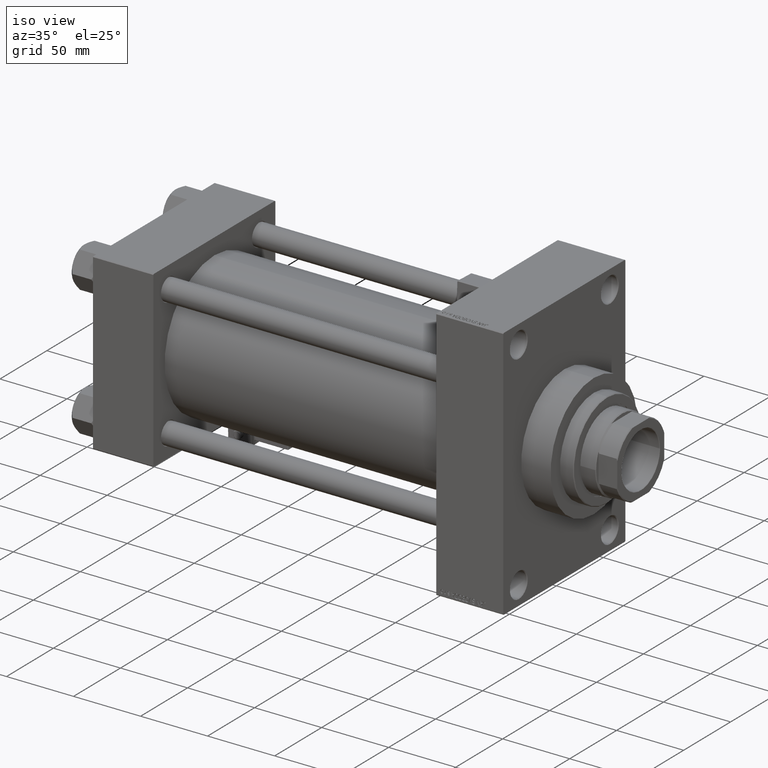
[diagram: clean part render]
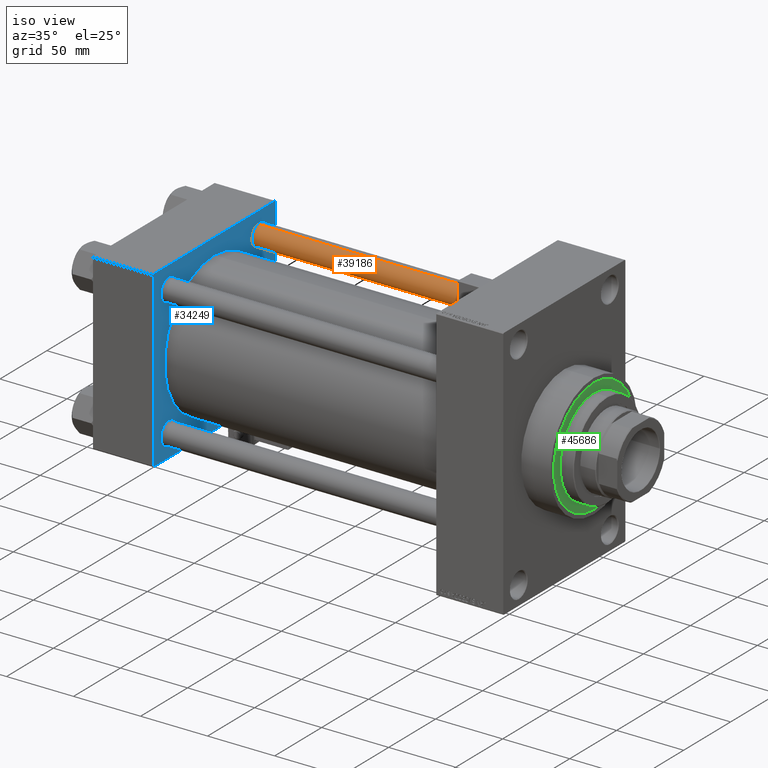
[diagram: same view with three faces highlighted in distinct colors, each labeled with its STEP entity id]
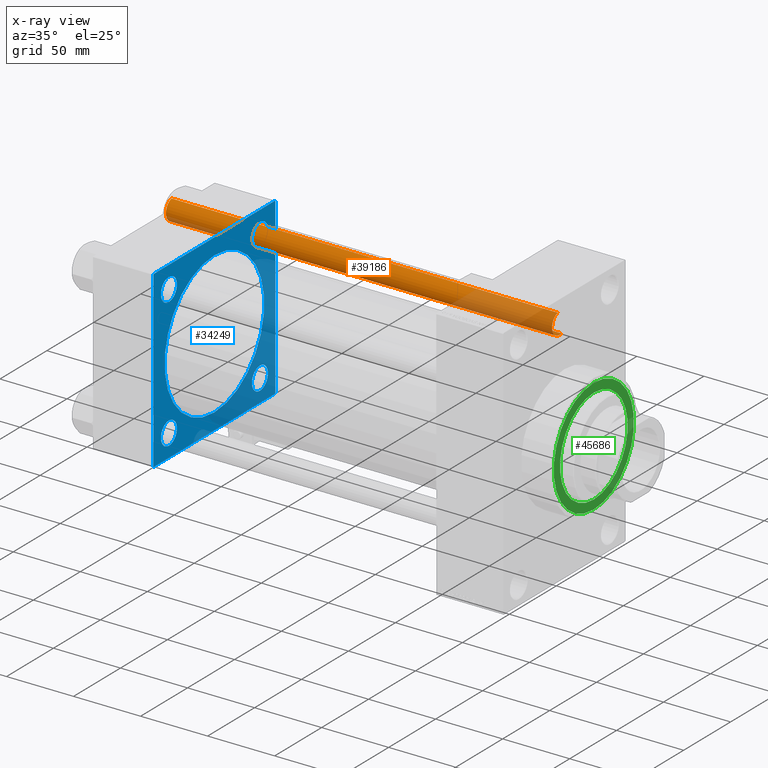
[diagram: x-ray of the same camera — body ghosted, the three highlighted faces saturated]
A machine part, iso view with three faces highlighted in distinct colors.
The next image is the same camera in x-ray (body ghosted, the three faces saturated) — at least one of them is partly hidden behind the body in this view.
Their STEP definitions:

[orange] entity #39186 — the highlighted cylindrical surface (edge-blend (fillet) strip) has radius 8 mm, axis along (-1, -0, 0).
#3914 = VERTEX_POINT ( 'NONE', #21766 ) ;
#5282 = AXIS2_PLACEMENT_3D ( 'NONE', #44425, #29289, #25001 ) ;
#5297 = CARTESIAN_POINT ( 'NONE',  ( -8.000000000000000000, 0.000000000000000000, 289.0000000000000000 ) ) ;
#6486 = VERTEX_POINT ( 'NONE', #22145 ) ;
#8903 = ORIENTED_EDGE ( 'NONE', *, *, #36702, .F. ) ;
#9100 = DIRECTION ( 'NONE',  ( -0.000000000000000000, -0.000000000000000000, -1.000000000000000000 ) ) ;
#9718 = ORIENTED_EDGE ( 'NONE', *, *, #20295, .T. ) ;
#9896 = DIRECTION ( 'NONE',  ( 1.000000000000000000, 0.000000000000000000, 0.000000000000000000 ) ) ;
#11014 = VECTOR ( 'NONE', #47243, 1000.000000000000000 ) ;
#12655 = LINE ( 'NONE', #42728, #11014 ) ;
#13025 = ORIENTED_EDGE ( 'NONE', *, *, #34467, .T. ) ;
#16992 = VECTOR ( 'NONE', #9100, 1000.000000000000000 ) ;
#17879 = AXIS2_PLACEMENT_3D ( 'NONE', #36919, #48277, #9896 ) ;
#20295 = EDGE_CURVE ( 'NONE', #6486, #37263, #46749, .T. ) ;
#21766 = CARTESIAN_POINT ( 'NONE',  ( 8.000000000000000000, 9.797174393178825657E-16, 288.5000000000000000 ) ) ;
#22145 = CARTESIAN_POINT ( 'NONE',  ( -8.000000000000000000, 0.000000000000000000, 288.5000000000000000 ) ) ;
#22680 = EDGE_CURVE ( 'NONE', #37263, #30196, #24367, .T. ) ;
#24367 = CIRCLE ( 'NONE', #17879, 8.000000000000000000 ) ;
#25001 = DIRECTION ( 'NONE',  ( 1.000000000000000000, 0.000000000000000000, 0.000000000000000000 ) ) ;
#27086 = AXIS2_PLACEMENT_3D ( 'NONE', #38635, #46941, #27269 ) ;
#27269 = DIRECTION ( 'NONE',  ( -1.000000000000000000, 0.000000000000000000, 0.000000000000000000 ) ) ;
#29289 = DIRECTION ( 'NONE',  ( 0.000000000000000000, 0.000000000000000000, -1.000000000000000000 ) ) ;
#30196 = VERTEX_POINT ( 'NONE', #41294 ) ;
#34467 = EDGE_CURVE ( 'NONE', #3914, #6486, #44016, .T. ) ;
#34588 = FACE_OUTER_BOUND ( 'NONE', #44912, .T. ) ;
#36702 = EDGE_CURVE ( 'NONE', #3914, #30196, #12655, .T. ) ;
#36919 = CARTESIAN_POINT ( 'NONE',  ( 0.000000000000000000, 0.000000000000000000, 0.5000000000000004441 ) ) ;
#37263 = VERTEX_POINT ( 'NONE', #38830 ) ;
#38192 = ORIENTED_EDGE ( 'NONE', *, *, #22680, .T. ) ;
#38635 = CARTESIAN_POINT ( 'NONE',  ( 0.000000000000000000, 0.000000000000000000, 289.0000000000000000 ) ) ;
#38830 = CARTESIAN_POINT ( 'NONE',  ( -8.000000000000000000, 0.000000000000000000, 0.5000000000000004441 ) ) ;
#39186 = ADVANCED_FACE ( 'NONE', ( #34588 ), #46693, .T. ) ;
#41294 = CARTESIAN_POINT ( 'NONE',  ( 8.000000000000000000, 9.797174393178825657E-16, 0.5000000000000004441 ) ) ;
#42728 = CARTESIAN_POINT ( 'NONE',  ( 8.000000000000000000, 9.797174393178825657E-16, 289.0000000000000000 ) ) ;
#44016 = CIRCLE ( 'NONE', #5282, 8.000000000000000000 ) ;
#44425 = CARTESIAN_POINT ( 'NONE',  ( 0.000000000000000000, 0.000000000000000000, 288.5000000000000000 ) ) ;
#44912 = EDGE_LOOP ( 'NONE', ( #8903, #13025, #9718, #38192 ) ) ;
#46693 = CYLINDRICAL_SURFACE ( 'NONE', #27086, 8.000000000000000000 ) ;
#46749 = LINE ( 'NONE', #5297, #16992 ) ;
#46941 = DIRECTION ( 'NONE',  ( -0.000000000000000000, -0.000000000000000000, -1.000000000000000000 ) ) ;
#47243 = DIRECTION ( 'NONE',  ( -0.000000000000000000, -0.000000000000000000, -1.000000000000000000 ) ) ;
#48277 = DIRECTION ( 'NONE',  ( -0.000000000000000000, -0.000000000000000000, 1.000000000000000000 ) ) ;

[blue] entity #34249 — the highlighted planar face has unit normal (-1, 0, 0).
#379 = EDGE_CURVE ( 'NONE', #25936, #34782, #1366, .T. ) ;
#633 = CARTESIAN_POINT ( 'NONE',  ( 45.00000000000000000, 65.00000000000000000, -64.99999999999998579 ) ) ;
#800 = VERTEX_POINT ( 'NONE', #21522 ) ;
#868 = VERTEX_POINT ( 'NONE', #3541 ) ;
#1366 = CIRCLE ( 'NONE', #2178, 8.499999999999952038 ) ;
#1419 = DIRECTION ( 'NONE',  ( -0.000000000000000000, -0.7071067811865672237, -0.7071067811865279218 ) ) ;
#1485 = ORIENTED_EDGE ( 'NONE', *, *, #7416, .T. ) ;
#1746 = ORIENTED_EDGE ( 'NONE', *, *, #5787, .T. ) ;
#1932 = VERTEX_POINT ( 'NONE', #5359 ) ;
#2178 = AXIS2_PLACEMENT_3D ( 'NONE', #34569, #46178, #11579 ) ;
#2731 = ORIENTED_EDGE ( 'NONE', *, *, #7954, .T. ) ;
#3004 = FACE_BOUND ( 'NONE', #8604, .T. ) ;
#3541 = CARTESIAN_POINT ( 'NONE',  ( 45.00000000000000000, 48.45000000000000995, -56.94999999999996732 ) ) ;
#3617 = EDGE_CURVE ( 'NONE', #7846, #27031, #23076, .T. ) ;
#4188 = CARTESIAN_POINT ( 'NONE',  ( 45.00000000000000000, 64.49999999999997158, 65.00000000000001421 ) ) ;
#4397 = EDGE_CURVE ( 'NONE', #42078, #6152, #44284, .T. ) ;
#4709 = CARTESIAN_POINT ( 'NONE',  ( 45.00000000000000000, 65.00000000000000000, 65.00000000000001421 ) ) ;
#4800 = CIRCLE ( 'NONE', #39516, 8.499999999999952038 ) ;
#4939 = LINE ( 'NONE', #633, #12066 ) ;
#5067 = CARTESIAN_POINT ( 'NONE',  ( 45.00000000000000000, 48.45000000000000995, -48.45000000000001705 ) ) ;
#5332 = CARTESIAN_POINT ( 'NONE',  ( 44.99999999999998579, -2.602085213965210642E-15, 0.000000000000000000 ) ) ;
#5359 = CARTESIAN_POINT ( 'NONE',  ( 45.00000000000000000, 65.00000000000000000, 64.49999999999998579 ) ) ;
#5538 = ORIENTED_EDGE ( 'NONE', *, *, #32896, .T. ) ;
#5637 = DIRECTION ( 'NONE',  ( 0.000000000000000000, -1.000000000000000000, -1.067522139062650425E-16 ) ) ;
#5674 = EDGE_CURVE ( 'NONE', #36056, #12218, #4939, .T. ) ;
#5721 = EDGE_LOOP ( 'NONE', ( #34245, #1485 ) ) ;
#5787 = EDGE_CURVE ( 'NONE', #37595, #35003, #4800, .T. ) ;
#6061 = CIRCLE ( 'NONE', #13331, 8.499999999999952038 ) ;
#6152 = VERTEX_POINT ( 'NONE', #34834 ) ;
#6636 = VECTOR ( 'NONE', #38855, 1000.000000000000000 ) ;
#6675 = EDGE_LOOP ( 'NONE', ( #35633, #40411 ) ) ;
#6827 = DIRECTION ( 'NONE',  ( -1.000000000000000000, 0.000000000000000000, -0.000000000000000000 ) ) ;
#7165 = CARTESIAN_POINT ( 'NONE',  ( 45.00000000000000000, -64.49999999999994316, -65.00000000000000000 ) ) ;
#7267 = CARTESIAN_POINT ( 'NONE',  ( 45.00000000000000000, 64.49999999999997158, 65.00000000000001421 ) ) ;
#7416 = EDGE_CURVE ( 'NONE', #14792, #868, #8125, .T. ) ;
#7809 = DIRECTION ( 'NONE',  ( -0.000000000000000000, 0.7071067811865474617, 0.7071067811865474617 ) ) ;
#7846 = VERTEX_POINT ( 'NONE', #30429 ) ;
#7954 = EDGE_CURVE ( 'NONE', #27031, #12218, #41782, .T. ) ;
#8092 = AXIS2_PLACEMENT_3D ( 'NONE', #5067, #9855, #17181 ) ;
#8125 = CIRCLE ( 'NONE', #8092, 8.499999999999952038 ) ;
#8480 = ORIENTED_EDGE ( 'NONE', *, *, #3617, .T. ) ;
#8604 = EDGE_LOOP ( 'NONE', ( #46177, #16787 ) ) ;
#8642 = CARTESIAN_POINT ( 'NONE',  ( 45.00000000000000000, 48.45000000000000995, 56.94999999999996732 ) ) ;
#9855 = DIRECTION ( 'NONE',  ( -1.000000000000000000, 0.000000000000000000, -0.000000000000000000 ) ) ;
#9878 = FACE_BOUND ( 'NONE', #5721, .T. ) ;
#10635 = EDGE_LOOP ( 'NONE', ( #44326, #49896, #17405, #27009, #5538, #32744, #8480, #2731 ) ) ;
#11449 = CARTESIAN_POINT ( 'NONE',  ( 45.00000000000000000, -65.00000000000000000, 65.00000000000000000 ) ) ;
#11579 = DIRECTION ( 'NONE',  ( 0.000000000000000000, 0.000000000000000000, 1.000000000000000000 ) ) ;
#11621 = EDGE_CURVE ( 'NONE', #1932, #15980, #23419, .T. ) ;
#12066 = VECTOR ( 'NONE', #24405, 1000.000000000000000 ) ;
#12218 = VERTEX_POINT ( 'NONE', #19873 ) ;
#13186 = DIRECTION ( 'NONE',  ( 1.000000000000000000, -0.000000000000000000, 0.000000000000000000 ) ) ;
#13236 = LINE ( 'NONE', #28652, #39098 ) ;
#13319 = EDGE_CURVE ( 'NONE', #868, #14792, #18464, .T. ) ;
#13331 = AXIS2_PLACEMENT_3D ( 'NONE', #25460, #48679, #48431 ) ;
#13441 = AXIS2_PLACEMENT_3D ( 'NONE', #26830, #6827, #38440 ) ;
#13674 = DIRECTION ( 'NONE',  ( -1.000000000000000000, 0.000000000000000000, -0.000000000000000000 ) ) ;
#13749 = CARTESIAN_POINT ( 'NONE',  ( 45.00000000000000000, -65.00000000000000000, -64.49999999999991473 ) ) ;
#13920 = CARTESIAN_POINT ( 'NONE',  ( 45.00000000000000000, 48.45000000000000995, -39.95000000000005969 ) ) ;
#14403 = FACE_BOUND ( 'NONE', #6675, .T. ) ;
#14792 = VERTEX_POINT ( 'NONE', #13920 ) ;
#15289 = VECTOR ( 'NONE', #38012, 1000.000000000000000 ) ;
#15980 = VERTEX_POINT ( 'NONE', #7267 ) ;
#16031 = EDGE_LOOP ( 'NONE', ( #37228, #44630 ) ) ;
#16516 = CARTESIAN_POINT ( 'NONE',  ( 45.00000000000000000, -48.44999999999999574, 48.45000000000003126 ) ) ;
#16787 = ORIENTED_EDGE ( 'NONE', *, *, #30403, .T. ) ;
#17181 = DIRECTION ( 'NONE',  ( 0.000000000000000000, 0.000000000000000000, 1.000000000000000000 ) ) ;
#17405 = ORIENTED_EDGE ( 'NONE', *, *, #28692, .F. ) ;
#18432 = CARTESIAN_POINT ( 'NONE',  ( 45.00000000000000000, 65.00000000000000000, -64.49999999999995737 ) ) ;
#18446 = PLANE ( 'NONE',  #27060 ) ;
#18464 = CIRCLE ( 'NONE', #28984, 8.499999999999952038 ) ;
#18614 = DIRECTION ( 'NONE',  ( 0.000000000000000000, -0.7071067811865474617, 0.7071067811865474617 ) ) ;
#18955 = CARTESIAN_POINT ( 'NONE',  ( 45.00000000000000000, -48.44999999999999574, 56.94999999999998153 ) ) ;
#19050 = VERTEX_POINT ( 'NONE', #18955 ) ;
#19701 = DIRECTION ( 'NONE',  ( 0.000000000000000000, 0.000000000000000000, 1.000000000000000000 ) ) ;
#19873 = CARTESIAN_POINT ( 'NONE',  ( 45.00000000000000000, -64.49999999999994316, -65.00000000000000000 ) ) ;
#20410 = CARTESIAN_POINT ( 'NONE',  ( 45.00000000000000000, -65.00000000000000000, 64.50000000000000000 ) ) ;
#20692 = CARTESIAN_POINT ( 'NONE',  ( 45.00000000000000000, -48.44999999999999574, 48.45000000000003126 ) ) ;
#21507 = DIRECTION ( 'NONE',  ( -0.000000000000000000, 0.000000000000000000, 1.000000000000000000 ) ) ;
#21522 = CARTESIAN_POINT ( 'NONE',  ( 45.00000000000000000, -64.49999999999997158, 65.00000000000000000 ) ) ;
#22485 = LINE ( 'NONE', #18432, #29773 ) ;
#23076 = LINE ( 'NONE', #11449, #24906 ) ;
#23178 = ORIENTED_EDGE ( 'NONE', *, *, #39469, .T. ) ;
#23419 = LINE ( 'NONE', #4188, #45490 ) ;
#23448 = LINE ( 'NONE', #4709, #6636 ) ;
#24065 = DIRECTION ( 'NONE',  ( 0.000000000000000000, 0.000000000000000000, 1.000000000000000000 ) ) ;
#24405 = DIRECTION ( 'NONE',  ( 0.000000000000000000, -1.000000000000000000, -1.067522139062650425E-16 ) ) ;
#24906 = VECTOR ( 'NONE', #35190, 1000.000000000000000 ) ;
#25006 = VERTEX_POINT ( 'NONE', #27223 ) ;
#25460 = CARTESIAN_POINT ( 'NONE',  ( 45.00000000000000000, -48.44999999999999574, -48.45000000000003126 ) ) ;
#25936 = VERTEX_POINT ( 'NONE', #34479 ) ;
#26032 = FACE_OUTER_BOUND ( 'NONE', #10635, .T. ) ;
#26284 = FACE_BOUND ( 'NONE', #30152, .T. ) ;
#26342 = EDGE_CURVE ( 'NONE', #6152, #42078, #37358, .T. ) ;
#26830 = CARTESIAN_POINT ( 'NONE',  ( 45.00000000000000000, 48.45000000000000995, 48.45000000000001705 ) ) ;
#27009 = ORIENTED_EDGE ( 'NONE', *, *, #11621, .T. ) ;
#27031 = VERTEX_POINT ( 'NONE', #13749 ) ;
#27060 = AXIS2_PLACEMENT_3D ( 'NONE', #41681, #13674, #21507 ) ;
#27223 = CARTESIAN_POINT ( 'NONE',  ( 45.00000000000000000, 65.00000000000000000, -64.49999999999995737 ) ) ;
#27630 = EDGE_CURVE ( 'NONE', #27749, #19050, #33291, .T. ) ;
#27749 = VERTEX_POINT ( 'NONE', #49352 ) ;
#28652 = CARTESIAN_POINT ( 'NONE',  ( 45.00000000000000000, 65.00000000000000000, 65.00000000000001421 ) ) ;
#28680 = CARTESIAN_POINT ( 'NONE',  ( 44.99999999999998579, -2.602085213965210642E-15, 0.000000000000000000 ) ) ;
#28692 = EDGE_CURVE ( 'NONE', #1932, #25006, #23448, .T. ) ;
#28984 = AXIS2_PLACEMENT_3D ( 'NONE', #31316, #34857, #30820 ) ;
#29432 = CARTESIAN_POINT ( 'NONE',  ( 45.00000000000000000, -48.44999999999999574, -48.45000000000003126 ) ) ;
#29773 = VECTOR ( 'NONE', #7809, 1000.000000000000114 ) ;
#29830 = FACE_BOUND ( 'NONE', #16031, .T. ) ;
#30152 = EDGE_LOOP ( 'NONE', ( #1746, #23178 ) ) ;
#30403 = EDGE_CURVE ( 'NONE', #19050, #27749, #38190, .T. ) ;
#30429 = CARTESIAN_POINT ( 'NONE',  ( 45.00000000000000000, -65.00000000000000000, 64.50000000000000000 ) ) ;
#30706 = CARTESIAN_POINT ( 'NONE',  ( 44.99999999999998579, -2.602085213965210642E-15, 53.00000000000000711 ) ) ;
#30820 = DIRECTION ( 'NONE',  ( 0.000000000000000000, 0.000000000000000000, 1.000000000000000000 ) ) ;
#31316 = CARTESIAN_POINT ( 'NONE',  ( 45.00000000000000000, 48.45000000000000995, -48.45000000000001705 ) ) ;
#31543 = LINE ( 'NONE', #20410, #49655 ) ;
#31944 = DIRECTION ( 'NONE',  ( -1.000000000000000000, 0.000000000000000000, -0.000000000000000000 ) ) ;
#32236 = AXIS2_PLACEMENT_3D ( 'NONE', #28680, #39803, #40047 ) ;
#32721 = DIRECTION ( 'NONE',  ( -1.000000000000000000, 0.000000000000000000, -0.000000000000000000 ) ) ;
#32744 = ORIENTED_EDGE ( 'NONE', *, *, #35535, .T. ) ;
#32896 = EDGE_CURVE ( 'NONE', #15980, #800, #13236, .T. ) ;
#33291 = CIRCLE ( 'NONE', #38118, 8.499999999999952038 ) ;
#34245 = ORIENTED_EDGE ( 'NONE', *, *, #13319, .T. ) ;
#34249 = ADVANCED_FACE ( 'NONE', ( #26284, #9878, #3004, #14403, #29830, #26032 ), #18446, .F. ) ;
#34479 = CARTESIAN_POINT ( 'NONE',  ( 45.00000000000000000, 48.45000000000000995, 39.95000000000005969 ) ) ;
#34569 = CARTESIAN_POINT ( 'NONE',  ( 45.00000000000000000, 48.45000000000000995, 48.45000000000001705 ) ) ;
#34782 = VERTEX_POINT ( 'NONE', #8642 ) ;
#34834 = CARTESIAN_POINT ( 'NONE',  ( 44.99999999999998579, 3.888542821515762466E-15, -53.00000000000000711 ) ) ;
#34857 = DIRECTION ( 'NONE',  ( -1.000000000000000000, 0.000000000000000000, -0.000000000000000000 ) ) ;
#35003 = VERTEX_POINT ( 'NONE', #37646 ) ;
#35190 = DIRECTION ( 'NONE',  ( 0.000000000000000000, 0.000000000000000000, -1.000000000000000000 ) ) ;
#35233 = CIRCLE ( 'NONE', #13441, 8.499999999999952038 ) ;
#35535 = EDGE_CURVE ( 'NONE', #800, #7846, #31543, .T. ) ;
#35633 = ORIENTED_EDGE ( 'NONE', *, *, #379, .T. ) ;
#36056 = VERTEX_POINT ( 'NONE', #43709 ) ;
#36509 = DIRECTION ( 'NONE',  ( 0.000000000000000000, 0.000000000000000000, 1.000000000000000000 ) ) ;
#36556 = EDGE_CURVE ( 'NONE', #34782, #25936, #35233, .T. ) ;
#37228 = ORIENTED_EDGE ( 'NONE', *, *, #4397, .F. ) ;
#37358 = CIRCLE ( 'NONE', #44597, 53.00000000000000711 ) ;
#37595 = VERTEX_POINT ( 'NONE', #46760 ) ;
#37646 = CARTESIAN_POINT ( 'NONE',  ( 45.00000000000000000, -48.44999999999999574, -39.95000000000007390 ) ) ;
#38012 = DIRECTION ( 'NONE',  ( 0.000000000000000000, 0.7071067811865279218, -0.7071067811865671127 ) ) ;
#38118 = AXIS2_PLACEMENT_3D ( 'NONE', #20692, #38900, #19701 ) ;
#38190 = CIRCLE ( 'NONE', #47839, 8.499999999999952038 ) ;
#38440 = DIRECTION ( 'NONE',  ( 0.000000000000000000, 0.000000000000000000, 1.000000000000000000 ) ) ;
#38855 = DIRECTION ( 'NONE',  ( 0.000000000000000000, 0.000000000000000000, -1.000000000000000000 ) ) ;
#38900 = DIRECTION ( 'NONE',  ( -1.000000000000000000, 0.000000000000000000, -0.000000000000000000 ) ) ;
#39098 = VECTOR ( 'NONE', #5637, 1000.000000000000000 ) ;
#39469 = EDGE_CURVE ( 'NONE', #35003, #37595, #6061, .T. ) ;
#39516 = AXIS2_PLACEMENT_3D ( 'NONE', #29432, #32721, #36509 ) ;
#39803 = DIRECTION ( 'NONE',  ( 1.000000000000000000, -0.000000000000000000, 0.000000000000000000 ) ) ;
#40047 = DIRECTION ( 'NONE',  ( 0.000000000000000000, 0.000000000000000000, 1.000000000000000000 ) ) ;
#40411 = ORIENTED_EDGE ( 'NONE', *, *, #36556, .T. ) ;
#41681 = CARTESIAN_POINT ( 'NONE',  ( 45.00000000000000000, 0.000000000000000000, 0.000000000000000000 ) ) ;
#41782 = LINE ( 'NONE', #7165, #15289 ) ;
#42078 = VERTEX_POINT ( 'NONE', #30706 ) ;
#43709 = CARTESIAN_POINT ( 'NONE',  ( 45.00000000000000000, 64.49999999999997158, -64.99999999999998579 ) ) ;
#44284 = CIRCLE ( 'NONE', #32236, 53.00000000000000711 ) ;
#44326 = ORIENTED_EDGE ( 'NONE', *, *, #5674, .F. ) ;
#44597 = AXIS2_PLACEMENT_3D ( 'NONE', #5332, #13186, #24065 ) ;
#44630 = ORIENTED_EDGE ( 'NONE', *, *, #26342, .F. ) ;
#45490 = VECTOR ( 'NONE', #18614, 1000.000000000000114 ) ;
#46177 = ORIENTED_EDGE ( 'NONE', *, *, #27630, .T. ) ;
#46178 = DIRECTION ( 'NONE',  ( -1.000000000000000000, 0.000000000000000000, -0.000000000000000000 ) ) ;
#46760 = CARTESIAN_POINT ( 'NONE',  ( 45.00000000000000000, -48.44999999999999574, -56.94999999999998153 ) ) ;
#47320 = DIRECTION ( 'NONE',  ( 0.000000000000000000, 0.000000000000000000, 1.000000000000000000 ) ) ;
#47839 = AXIS2_PLACEMENT_3D ( 'NONE', #16516, #31944, #47320 ) ;
#48431 = DIRECTION ( 'NONE',  ( 0.000000000000000000, 0.000000000000000000, 1.000000000000000000 ) ) ;
#48679 = DIRECTION ( 'NONE',  ( -1.000000000000000000, 0.000000000000000000, -0.000000000000000000 ) ) ;
#49352 = CARTESIAN_POINT ( 'NONE',  ( 45.00000000000000000, -48.44999999999999574, 39.95000000000007390 ) ) ;
#49572 = EDGE_CURVE ( 'NONE', #36056, #25006, #22485, .T. ) ;
#49655 = VECTOR ( 'NONE', #1419, 1000.000000000000000 ) ;
#49896 = ORIENTED_EDGE ( 'NONE', *, *, #49572, .T. ) ;

[green] entity #45686 — the highlighted planar face has unit normal (1, -0, -0).
#537 = EDGE_CURVE ( 'NONE', #42280, #32901, #12713, .T. ) ;
#1376 = EDGE_LOOP ( 'NONE', ( #12800, #41831 ) ) ;
#1661 = CARTESIAN_POINT ( 'NONE',  ( 0.000000000000000000, 0.000000000000000000, 43.25999999999999801 ) ) ;
#1899 = FACE_OUTER_BOUND ( 'NONE', #41784, .T. ) ;
#3164 = DIRECTION ( 'NONE',  ( 0.000000000000000000, 0.000000000000000000, 1.000000000000000000 ) ) ;
#6443 = DIRECTION ( 'NONE',  ( 0.000000000000000000, 0.000000000000000000, 1.000000000000000000 ) ) ;
#6627 = EDGE_CURVE ( 'NONE', #14347, #9182, #34711, .T. ) ;
#6672 = CIRCLE ( 'NONE', #48630, 36.00000000000000000 ) ;
#9182 = VERTEX_POINT ( 'NONE', #38411 ) ;
#9939 = CARTESIAN_POINT ( 'NONE',  ( -36.00000000000000000, 0.000000000000000000, 43.25999999999999801 ) ) ;
#12713 = CIRCLE ( 'NONE', #32869, 36.00000000000000000 ) ;
#12800 = ORIENTED_EDGE ( 'NONE', *, *, #537, .F. ) ;
#12933 = AXIS2_PLACEMENT_3D ( 'NONE', #31989, #27955, #24412 ) ;
#14347 = VERTEX_POINT ( 'NONE', #38339 ) ;
#15279 = DIRECTION ( 'NONE',  ( 0.000000000000000000, 0.000000000000000000, 1.000000000000000000 ) ) ;
#20251 = ORIENTED_EDGE ( 'NONE', *, *, #6627, .T. ) ;
#21139 = DIRECTION ( 'NONE',  ( 1.000000000000000000, 0.000000000000000000, -0.000000000000000000 ) ) ;
#21402 = DIRECTION ( 'NONE',  ( 1.000000000000000000, 0.000000000000000000, 0.000000000000000000 ) ) ;
#24412 = DIRECTION ( 'NONE',  ( 1.000000000000000000, 0.000000000000000000, 0.000000000000000000 ) ) ;
#24919 = AXIS2_PLACEMENT_3D ( 'NONE', #1661, #36040, #21139 ) ;
#25941 = EDGE_CURVE ( 'NONE', #32901, #42280, #6672, .T. ) ;
#27912 = CARTESIAN_POINT ( 'NONE',  ( 36.00000000000000000, 4.408728476930470856E-15, 43.25999999999999801 ) ) ;
#27955 = DIRECTION ( 'NONE',  ( 0.000000000000000000, 0.000000000000000000, 1.000000000000000000 ) ) ;
#31989 = CARTESIAN_POINT ( 'NONE',  ( 0.000000000000000000, 0.000000000000000000, 43.25999999999999801 ) ) ;
#32869 = AXIS2_PLACEMENT_3D ( 'NONE', #41087, #3164, #21402 ) ;
#32901 = VERTEX_POINT ( 'NONE', #27912 ) ;
#33996 = DIRECTION ( 'NONE',  ( 1.000000000000000000, 0.000000000000000000, 0.000000000000000000 ) ) ;
#34711 = CIRCLE ( 'NONE', #12933, 42.75000000000000000 ) ;
#34993 = CARTESIAN_POINT ( 'NONE',  ( 0.000000000000000000, 0.000000000000000000, 43.25999999999999801 ) ) ;
#35799 = PLANE ( 'NONE',  #24919 ) ;
#36040 = DIRECTION ( 'NONE',  ( 0.000000000000000000, 0.000000000000000000, 1.000000000000000000 ) ) ;
#38339 = CARTESIAN_POINT ( 'NONE',  ( 42.75000000000000000, 5.235365066354935472E-15, 43.25999999999999801 ) ) ;
#38411 = CARTESIAN_POINT ( 'NONE',  ( -42.75000000000000000, 0.000000000000000000, 43.25999999999999801 ) ) ;
#41087 = CARTESIAN_POINT ( 'NONE',  ( 0.000000000000000000, 0.000000000000000000, 43.25999999999999801 ) ) ;
#41784 = EDGE_LOOP ( 'NONE', ( #45555, #20251 ) ) ;
#41810 = CARTESIAN_POINT ( 'NONE',  ( 0.000000000000000000, 0.000000000000000000, 43.25999999999999801 ) ) ;
#41831 = ORIENTED_EDGE ( 'NONE', *, *, #25941, .F. ) ;
#42280 = VERTEX_POINT ( 'NONE', #9939 ) ;
#42570 = CIRCLE ( 'NONE', #45757, 42.75000000000000000 ) ;
#43307 = DIRECTION ( 'NONE',  ( 1.000000000000000000, 0.000000000000000000, 0.000000000000000000 ) ) ;
#45555 = ORIENTED_EDGE ( 'NONE', *, *, #46628, .T. ) ;
#45686 = ADVANCED_FACE ( 'NONE', ( #48377, #1899 ), #35799, .T. ) ;
#45757 = AXIS2_PLACEMENT_3D ( 'NONE', #41810, #6443, #33996 ) ;
#46628 = EDGE_CURVE ( 'NONE', #9182, #14347, #42570, .T. ) ;
#48377 = FACE_BOUND ( 'NONE', #1376, .T. ) ;
#48630 = AXIS2_PLACEMENT_3D ( 'NONE', #34993, #15279, #43307 ) ;